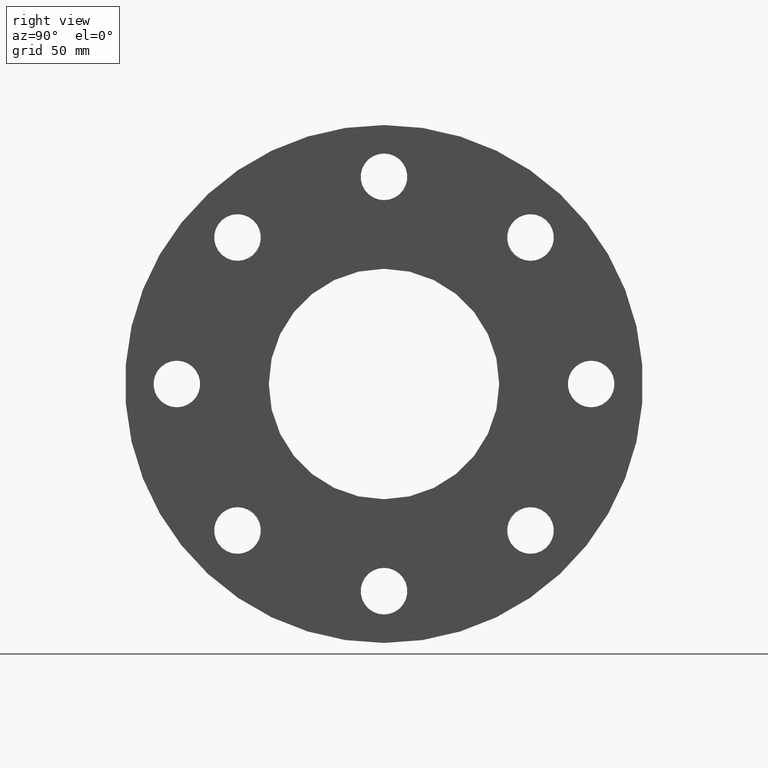
[diagram: clean part render]
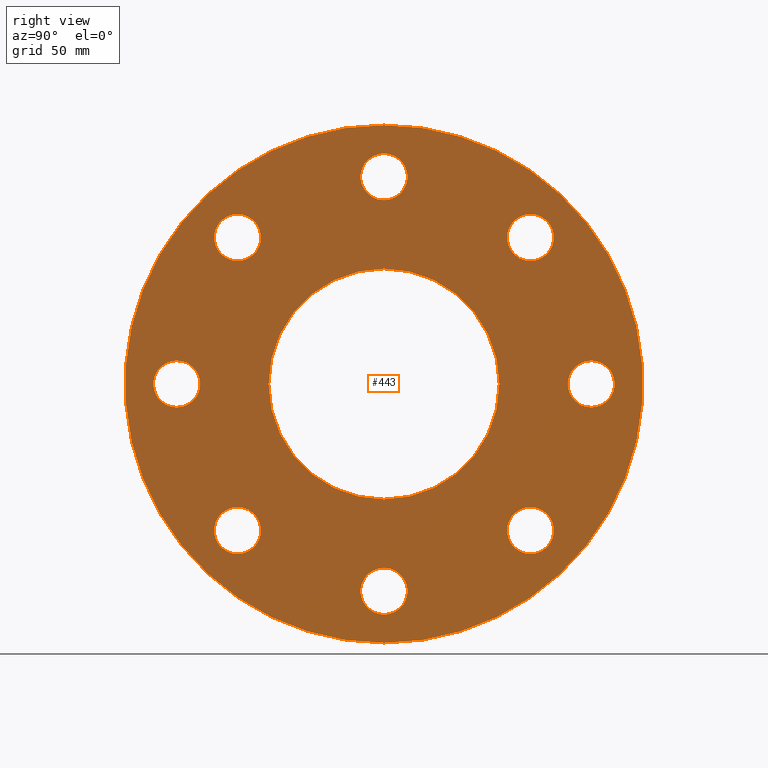
[diagram: same view with one face highlighted and labeled with its STEP entity id]
A machine part, right view. The second image highlights one B-rep face of the part: STEP entity #443.
In plain terms, the highlighted planar face has unit normal (1, 0, 0).
Its self-contained STEP definition (entity closure, byte-faithful):
#5 = CIRCLE ( 'NONE', #806, 9.000000000000001776 ) ;
#8 = DIRECTION ( 'NONE',  ( 1.000000000000000000, 0.000000000000000000, 0.000000000000000000 ) ) ;
#14 = CARTESIAN_POINT ( 'NONE',  ( 0.000000000000000000, -56.56854249492391773, 47.56854249492367614 ) ) ;
#18 = CIRCLE ( 'NONE', #379, 9.000000000000001776 ) ;
#21 = EDGE_CURVE ( 'NONE', #712, #302, #502, .T. ) ;
#27 = CARTESIAN_POINT ( 'NONE',  ( 0.000000000000000000, -80.00000000000000000, -1.663166132592763802E-13 ) ) ;
#30 = CARTESIAN_POINT ( 'NONE',  ( 0.000000000000000000, 80.00000000000000000, 9.000000000000145661 ) ) ;
#41 = EDGE_LOOP ( 'NONE', ( #574, #492 ) ) ;
#45 = VERTEX_POINT ( 'NONE', #599 ) ;
#51 = ORIENTED_EDGE ( 'NONE', *, *, #576, .F. ) ;
#52 = CARTESIAN_POINT ( 'NONE',  ( 0.000000000000000000, -56.56854249492391773, 56.56854249492367614 ) ) ;
#56 = VERTEX_POINT ( 'NONE', #427 ) ;
#58 = AXIS2_PLACEMENT_3D ( 'NONE', #198, #787, #659 ) ;
#64 = CARTESIAN_POINT ( 'NONE',  ( 0.000000000000000000, 0.000000000000000000, 0.000000000000000000 ) ) ;
#65 = ORIENTED_EDGE ( 'NONE', *, *, #711, .F. ) ;
#67 = EDGE_CURVE ( 'NONE', #226, #56, #392, .T. ) ;
#68 = CARTESIAN_POINT ( 'NONE',  ( 0.000000000000000000, -80.00000000000000000, 8.999999999999829470 ) ) ;
#73 = CARTESIAN_POINT ( 'NONE',  ( 0.000000000000000000, 0.000000000000000000, 0.000000000000000000 ) ) ;
#76 = EDGE_LOOP ( 'NONE', ( #172, #830 ) ) ;
#80 = DIRECTION ( 'NONE',  ( 1.000000000000000000, 0.000000000000000000, 0.000000000000000000 ) ) ;
#88 = CIRCLE ( 'NONE', #321, 9.000000000000001776 ) ;
#97 = FACE_BOUND ( 'NONE', #702, .T. ) ;
#99 = VERTEX_POINT ( 'NONE', #547 ) ;
#102 = CIRCLE ( 'NONE', #407, 8.999999999999994671 ) ;
#103 = CARTESIAN_POINT ( 'NONE',  ( 0.000000000000000000, 0.000000000000000000, 0.000000000000000000 ) ) ;
#110 = FACE_BOUND ( 'NONE', #342, .T. ) ;
#113 = VERTEX_POINT ( 'NONE', #292 ) ;
#119 = DIRECTION ( 'NONE',  ( 1.000000000000000000, 0.000000000000000000, 0.000000000000000000 ) ) ;
#123 = CARTESIAN_POINT ( 'NONE',  ( 0.000000000000000000, -56.56854249492391773, 56.56854249492367614 ) ) ;
#124 = EDGE_CURVE ( 'NONE', #345, #190, #591, .T. ) ;
#129 = DIRECTION ( 'NONE',  ( 0.000000000000000000, 0.000000000000000000, -1.000000000000000000 ) ) ;
#130 = AXIS2_PLACEMENT_3D ( 'NONE', #184, #505, #129 ) ;
#131 = CIRCLE ( 'NONE', #596, 8.999999999999992895 ) ;
#133 = VERTEX_POINT ( 'NONE', #288 ) ;
#137 = EDGE_CURVE ( 'NONE', #700, #448, #635, .T. ) ;
#150 = VERTEX_POINT ( 'NONE', #617 ) ;
#151 = CARTESIAN_POINT ( 'NONE',  ( 0.000000000000000000, 80.00000000000000000, 1.526556658859590243E-13 ) ) ;
#152 = CARTESIAN_POINT ( 'NONE',  ( 0.000000000000000000, 80.00000000000000000, 1.526556658859590243E-13 ) ) ;
#155 = CARTESIAN_POINT ( 'NONE',  ( 0.000000000000000000, 0.000000000000000000, 0.000000000000000000 ) ) ;
#164 = FACE_BOUND ( 'NONE', #500, .T. ) ;
#166 = AXIS2_PLACEMENT_3D ( 'NONE', #73, #210, #582 ) ;
#172 = ORIENTED_EDGE ( 'NONE', *, *, #388, .F. ) ;
#179 = CARTESIAN_POINT ( 'NONE',  ( 0.000000000000000000, 56.56854249492391062, -65.56854249492369036 ) ) ;
#180 = AXIS2_PLACEMENT_3D ( 'NONE', #556, #495, #811 ) ;
#184 = CARTESIAN_POINT ( 'NONE',  ( 0.000000000000000000, 0.000000000000000000, 0.000000000000000000 ) ) ;
#187 = ORIENTED_EDGE ( 'NONE', *, *, #350, .F. ) ;
#190 = VERTEX_POINT ( 'NONE', #179 ) ;
#194 = DIRECTION ( 'NONE',  ( 0.000000000000000000, 0.000000000000000000, -1.000000000000000000 ) ) ;
#198 = CARTESIAN_POINT ( 'NONE',  ( 0.000000000000000000, 1.595945597898662527E-13, -79.99999999999998579 ) ) ;
#201 = DIRECTION ( 'NONE',  ( 0.000000000000000000, 0.000000000000000000, -1.000000000000000000 ) ) ;
#210 = DIRECTION ( 'NONE',  ( 1.000000000000000000, 0.000000000000000000, 0.000000000000000000 ) ) ;
#212 = DIRECTION ( 'NONE',  ( 1.000000000000000000, 0.000000000000000000, 0.000000000000000000 ) ) ;
#215 = FACE_BOUND ( 'NONE', #76, .T. ) ;
#219 = CARTESIAN_POINT ( 'NONE',  ( 0.000000000000000000, 56.56854249492369036, 56.56854249492390352 ) ) ;
#220 = EDGE_LOOP ( 'NONE', ( #187, #444 ) ) ;
#223 = ORIENTED_EDGE ( 'NONE', *, *, #67, .F. ) ;
#225 = DIRECTION ( 'NONE',  ( 1.000000000000000000, 0.000000000000000000, 0.000000000000000000 ) ) ;
#226 = VERTEX_POINT ( 'NONE', #364 ) ;
#227 = FACE_OUTER_BOUND ( 'NONE', #396, .T. ) ;
#228 = EDGE_CURVE ( 'NONE', #625, #113, #102, .T. ) ;
#230 = CIRCLE ( 'NONE', #542, 8.999999999999996447 ) ;
#233 = EDGE_LOOP ( 'NONE', ( #771, #465 ) ) ;
#237 = DIRECTION ( 'NONE',  ( 0.000000000000000000, 0.000000000000000000, -1.000000000000000000 ) ) ;
#240 = EDGE_CURVE ( 'NONE', #150, #45, #319, .T. ) ;
#241 = EDGE_LOOP ( 'NONE', ( #293, #641 ) ) ;
#248 = DIRECTION ( 'NONE',  ( 1.000000000000000000, 0.000000000000000000, 0.000000000000000000 ) ) ;
#249 = EDGE_CURVE ( 'NONE', #113, #625, #832, .T. ) ;
#269 = CARTESIAN_POINT ( 'NONE',  ( 0.000000000000000000, 56.56854249492391062, -56.56854249492368325 ) ) ;
#275 = CARTESIAN_POINT ( 'NONE',  ( 0.000000000000000000, -56.56854249492391773, 65.56854249492367614 ) ) ;
#282 = PLANE ( 'NONE',  #833 ) ;
#286 = ORIENTED_EDGE ( 'NONE', *, *, #240, .F. ) ;
#288 = CARTESIAN_POINT ( 'NONE',  ( 0.000000000000000000, 56.56854249492369036, 65.56854249492391773 ) ) ;
#292 = CARTESIAN_POINT ( 'NONE',  ( 0.000000000000000000, 1.595945597898662527E-13, -88.99999999999998579 ) ) ;
#293 = ORIENTED_EDGE ( 'NONE', *, *, #640, .F. ) ;
#294 = CARTESIAN_POINT ( 'NONE',  ( 0.000000000000000000, -1.466548965701370020E-13, 89.00000000000000000 ) ) ;
#298 = ORIENTED_EDGE ( 'NONE', *, *, #21, .F. ) ;
#299 = CARTESIAN_POINT ( 'NONE',  ( 0.000000000000000000, -1.477570786893696184E-13, 80.00000000000000000 ) ) ;
#300 = EDGE_CURVE ( 'NONE', #769, #504, #421, .T. ) ;
#302 = VERTEX_POINT ( 'NONE', #68 ) ;
#314 = DIRECTION ( 'NONE',  ( 1.000000000000000000, 0.000000000000000000, 0.000000000000000000 ) ) ;
#315 = VERTEX_POINT ( 'NONE', #275 ) ;
#319 = CIRCLE ( 'NONE', #696, 44.50000000000000711 ) ;
#321 = AXIS2_PLACEMENT_3D ( 'NONE', #52, #248, #507 ) ;
#329 = CARTESIAN_POINT ( 'NONE',  ( 0.000000000000000000, -1.477570786893696184E-13, 71.00000000000001421 ) ) ;
#330 = CARTESIAN_POINT ( 'NONE',  ( 0.000000000000000000, 56.56854249492391062, -47.56854249492367614 ) ) ;
#332 = ORIENTED_EDGE ( 'NONE', *, *, #614, .F. ) ;
#334 = AXIS2_PLACEMENT_3D ( 'NONE', #123, #627, #823 ) ;
#339 = EDGE_CURVE ( 'NONE', #448, #700, #375, .T. ) ;
#342 = EDGE_LOOP ( 'NONE', ( #524, #705 ) ) ;
#344 = CARTESIAN_POINT ( 'NONE',  ( 0.000000000000000000, 1.224646799147353217E-14, 100.0000000000000000 ) ) ;
#345 = VERTEX_POINT ( 'NONE', #330 ) ;
#350 = EDGE_CURVE ( 'NONE', #390, #456, #362, .T. ) ;
#361 = DIRECTION ( 'NONE',  ( 0.000000000000000000, 0.000000000000000000, -1.000000000000000000 ) ) ;
#362 = CIRCLE ( 'NONE', #803, 8.999999999999992895 ) ;
#364 = CARTESIAN_POINT ( 'NONE',  ( 0.000000000000000000, -56.56854249492368325, -47.56854249492391062 ) ) ;
#375 = CIRCLE ( 'NONE', #166, 100.0000000000000000 ) ;
#377 = AXIS2_PLACEMENT_3D ( 'NONE', #269, #796, #467 ) ;
#379 = AXIS2_PLACEMENT_3D ( 'NONE', #460, #80, #658 ) ;
#381 = CARTESIAN_POINT ( 'NONE',  ( 0.000000000000000000, -80.00000000000000000, -1.663166132592763802E-13 ) ) ;
#388 = EDGE_CURVE ( 'NONE', #190, #345, #461, .T. ) ;
#390 = VERTEX_POINT ( 'NONE', #783 ) ;
#392 = CIRCLE ( 'NONE', #578, 9.000000000000001776 ) ;
#393 = CARTESIAN_POINT ( 'NONE',  ( 0.000000000000000000, 0.000000000000000000, -100.0000000000000000 ) ) ;
#396 = EDGE_LOOP ( 'NONE', ( #428, #661 ) ) ;
#407 = AXIS2_PLACEMENT_3D ( 'NONE', #624, #560, #826 ) ;
#409 = FACE_BOUND ( 'NONE', #564, .T. ) ;
#413 = FACE_BOUND ( 'NONE', #233, .T. ) ;
#421 = CIRCLE ( 'NONE', #735, 8.999999999999994671 ) ;
#422 = CIRCLE ( 'NONE', #130, 44.50000000000000711 ) ;
#426 = DIRECTION ( 'NONE',  ( 0.000000000000000000, 0.000000000000000000, -1.000000000000000000 ) ) ;
#427 = CARTESIAN_POINT ( 'NONE',  ( 0.000000000000000000, -56.56854249492368325, -65.56854249492391773 ) ) ;
#428 = ORIENTED_EDGE ( 'NONE', *, *, #137, .T. ) ;
#430 = DIRECTION ( 'NONE',  ( 1.000000000000000000, 0.000000000000000000, 0.000000000000000000 ) ) ;
#440 = EDGE_CURVE ( 'NONE', #99, #133, #489, .T. ) ;
#443 = ADVANCED_FACE ( 'NONE', ( #813, #478, #409, #413, #215, #673, #97, #164, #110, #227 ), #282, .T. ) ;
#444 = ORIENTED_EDGE ( 'NONE', *, *, #825, .F. ) ;
#448 = VERTEX_POINT ( 'NONE', #344 ) ;
#450 = DIRECTION ( 'NONE',  ( 0.000000000000000000, 0.000000000000000000, -1.000000000000000000 ) ) ;
#456 = VERTEX_POINT ( 'NONE', #30 ) ;
#460 = CARTESIAN_POINT ( 'NONE',  ( 0.000000000000000000, 56.56854249492369036, 56.56854249492390352 ) ) ;
#461 = CIRCLE ( 'NONE', #377, 9.000000000000007105 ) ;
#465 = ORIENTED_EDGE ( 'NONE', *, *, #228, .F. ) ;
#467 = DIRECTION ( 'NONE',  ( 0.000000000000000000, 0.000000000000000000, -1.000000000000000000 ) ) ;
#477 = AXIS2_PLACEMENT_3D ( 'NONE', #219, #485, #426 ) ;
#478 = FACE_BOUND ( 'NONE', #241, .T. ) ;
#485 = DIRECTION ( 'NONE',  ( 1.000000000000000000, 0.000000000000000000, 0.000000000000000000 ) ) ;
#489 = CIRCLE ( 'NONE', #477, 9.000000000000001776 ) ;
#492 = ORIENTED_EDGE ( 'NONE', *, *, #628, .F. ) ;
#495 = DIRECTION ( 'NONE',  ( 1.000000000000000000, 0.000000000000000000, 0.000000000000000000 ) ) ;
#500 = EDGE_LOOP ( 'NONE', ( #286, #51 ) ) ;
#502 = CIRCLE ( 'NONE', #681, 8.999999999999996447 ) ;
#504 = VERTEX_POINT ( 'NONE', #294 ) ;
#505 = DIRECTION ( 'NONE',  ( 1.000000000000000000, 0.000000000000000000, 0.000000000000000000 ) ) ;
#507 = DIRECTION ( 'NONE',  ( 0.000000000000000000, 0.000000000000000000, -1.000000000000000000 ) ) ;
#511 = CARTESIAN_POINT ( 'NONE',  ( 0.000000000000000000, -56.56854249492368325, -56.56854249492391062 ) ) ;
#513 = AXIS2_PLACEMENT_3D ( 'NONE', #299, #695, #237 ) ;
#524 = ORIENTED_EDGE ( 'NONE', *, *, #440, .F. ) ;
#525 = DIRECTION ( 'NONE',  ( 1.000000000000000000, 0.000000000000000000, 0.000000000000000000 ) ) ;
#532 = DIRECTION ( 'NONE',  ( 0.000000000000000000, 0.000000000000000000, -1.000000000000000000 ) ) ;
#542 = AXIS2_PLACEMENT_3D ( 'NONE', #381, #119, #361 ) ;
#547 = CARTESIAN_POINT ( 'NONE',  ( 0.000000000000000000, 56.56854249492369036, 47.56854249492390352 ) ) ;
#551 = DIRECTION ( 'NONE',  ( 0.000000000000000000, 0.000000000000000000, -1.000000000000000000 ) ) ;
#556 = CARTESIAN_POINT ( 'NONE',  ( 0.000000000000000000, 56.56854249492391062, -56.56854249492368325 ) ) ;
#560 = DIRECTION ( 'NONE',  ( 1.000000000000000000, 0.000000000000000000, 0.000000000000000000 ) ) ;
#564 = EDGE_LOOP ( 'NONE', ( #298, #332 ) ) ;
#573 = DIRECTION ( 'NONE',  ( 0.000000000000000000, 0.000000000000000000, -1.000000000000000000 ) ) ;
#574 = ORIENTED_EDGE ( 'NONE', *, *, #300, .F. ) ;
#576 = EDGE_CURVE ( 'NONE', #45, #150, #422, .T. ) ;
#578 = AXIS2_PLACEMENT_3D ( 'NONE', #511, #225, #551 ) ;
#582 = DIRECTION ( 'NONE',  ( 0.000000000000000000, 0.000000000000000000, -1.000000000000000000 ) ) ;
#591 = CIRCLE ( 'NONE', #180, 9.000000000000007105 ) ;
#596 = AXIS2_PLACEMENT_3D ( 'NONE', #151, #839, #645 ) ;
#599 = CARTESIAN_POINT ( 'NONE',  ( 0.000000000000000000, 5.449678256205721981E-15, 44.50000000000000711 ) ) ;
#612 = DIRECTION ( 'NONE',  ( 1.000000000000000000, 0.000000000000000000, 0.000000000000000000 ) ) ;
#614 = EDGE_CURVE ( 'NONE', #302, #712, #230, .T. ) ;
#616 = DIRECTION ( 'NONE',  ( 0.000000000000000000, 0.000000000000000000, -1.000000000000000000 ) ) ;
#617 = CARTESIAN_POINT ( 'NONE',  ( 0.000000000000000000, 0.000000000000000000, -44.50000000000000711 ) ) ;
#624 = CARTESIAN_POINT ( 'NONE',  ( 0.000000000000000000, 1.595945597898662527E-13, -79.99999999999998579 ) ) ;
#625 = VERTEX_POINT ( 'NONE', #828 ) ;
#627 = DIRECTION ( 'NONE',  ( 1.000000000000000000, 0.000000000000000000, 0.000000000000000000 ) ) ;
#628 = EDGE_CURVE ( 'NONE', #504, #769, #753, .T. ) ;
#635 = CIRCLE ( 'NONE', #664, 100.0000000000000000 ) ;
#640 = EDGE_CURVE ( 'NONE', #793, #315, #709, .T. ) ;
#641 = ORIENTED_EDGE ( 'NONE', *, *, #656, .F. ) ;
#645 = DIRECTION ( 'NONE',  ( 0.000000000000000000, 0.000000000000000000, -1.000000000000000000 ) ) ;
#646 = DIRECTION ( 'NONE',  ( 1.000000000000000000, 0.000000000000000000, 0.000000000000000000 ) ) ;
#656 = EDGE_CURVE ( 'NONE', #315, #793, #88, .T. ) ;
#658 = DIRECTION ( 'NONE',  ( 0.000000000000000000, 0.000000000000000000, -1.000000000000000000 ) ) ;
#659 = DIRECTION ( 'NONE',  ( 0.000000000000000000, 0.000000000000000000, -1.000000000000000000 ) ) ;
#661 = ORIENTED_EDGE ( 'NONE', *, *, #339, .T. ) ;
#664 = AXIS2_PLACEMENT_3D ( 'NONE', #103, #430, #194 ) ;
#665 = DIRECTION ( 'NONE',  ( 0.000000000000000000, 0.000000000000000000, -1.000000000000000000 ) ) ;
#673 = FACE_BOUND ( 'NONE', #220, .T. ) ;
#681 = AXIS2_PLACEMENT_3D ( 'NONE', #27, #212, #665 ) ;
#695 = DIRECTION ( 'NONE',  ( 1.000000000000000000, 0.000000000000000000, 0.000000000000000000 ) ) ;
#696 = AXIS2_PLACEMENT_3D ( 'NONE', #64, #314, #573 ) ;
#700 = VERTEX_POINT ( 'NONE', #393 ) ;
#702 = EDGE_LOOP ( 'NONE', ( #65, #223 ) ) ;
#705 = ORIENTED_EDGE ( 'NONE', *, *, #784, .F. ) ;
#709 = CIRCLE ( 'NONE', #334, 9.000000000000001776 ) ;
#711 = EDGE_CURVE ( 'NONE', #56, #226, #5, .T. ) ;
#712 = VERTEX_POINT ( 'NONE', #789 ) ;
#728 = CARTESIAN_POINT ( 'NONE',  ( 0.000000000000000000, -1.477570786893696184E-13, 80.00000000000000000 ) ) ;
#735 = AXIS2_PLACEMENT_3D ( 'NONE', #728, #646, #532 ) ;
#753 = CIRCLE ( 'NONE', #513, 8.999999999999994671 ) ;
#769 = VERTEX_POINT ( 'NONE', #329 ) ;
#771 = ORIENTED_EDGE ( 'NONE', *, *, #249, .F. ) ;
#776 = CARTESIAN_POINT ( 'NONE',  ( 0.000000000000000000, -56.56854249492368325, -56.56854249492391062 ) ) ;
#783 = CARTESIAN_POINT ( 'NONE',  ( 0.000000000000000000, 80.00000000000000000, -8.999999999999840128 ) ) ;
#784 = EDGE_CURVE ( 'NONE', #133, #99, #18, .T. ) ;
#787 = DIRECTION ( 'NONE',  ( 1.000000000000000000, 0.000000000000000000, 0.000000000000000000 ) ) ;
#789 = CARTESIAN_POINT ( 'NONE',  ( 0.000000000000000000, -80.00000000000000000, -9.000000000000161648 ) ) ;
#793 = VERTEX_POINT ( 'NONE', #14 ) ;
#796 = DIRECTION ( 'NONE',  ( 1.000000000000000000, 0.000000000000000000, 0.000000000000000000 ) ) ;
#803 = AXIS2_PLACEMENT_3D ( 'NONE', #152, #8, #201 ) ;
#806 = AXIS2_PLACEMENT_3D ( 'NONE', #776, #525, #450 ) ;
#811 = DIRECTION ( 'NONE',  ( 0.000000000000000000, 0.000000000000000000, -1.000000000000000000 ) ) ;
#813 = FACE_BOUND ( 'NONE', #41, .T. ) ;
#823 = DIRECTION ( 'NONE',  ( 0.000000000000000000, 0.000000000000000000, -1.000000000000000000 ) ) ;
#825 = EDGE_CURVE ( 'NONE', #456, #390, #131, .T. ) ;
#826 = DIRECTION ( 'NONE',  ( 0.000000000000000000, 0.000000000000000000, -1.000000000000000000 ) ) ;
#828 = CARTESIAN_POINT ( 'NONE',  ( 0.000000000000000000, 1.606967419090988690E-13, -71.00000000000000000 ) ) ;
#830 = ORIENTED_EDGE ( 'NONE', *, *, #124, .F. ) ;
#832 = CIRCLE ( 'NONE', #58, 8.999999999999994671 ) ;
#833 = AXIS2_PLACEMENT_3D ( 'NONE', #155, #612, #616 ) ;
#839 = DIRECTION ( 'NONE',  ( 1.000000000000000000, 0.000000000000000000, 0.000000000000000000 ) ) ;